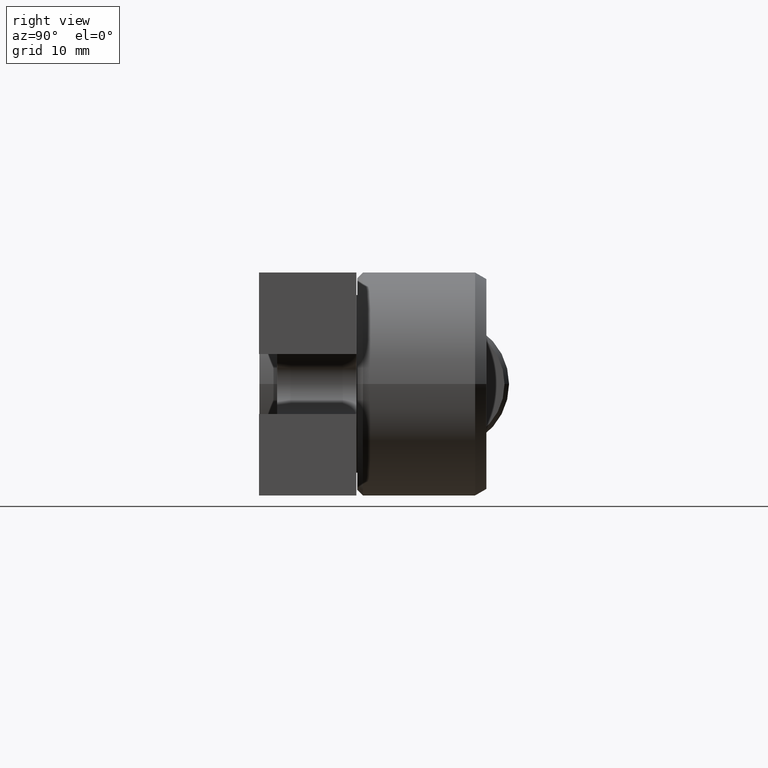
[diagram: clean part render]
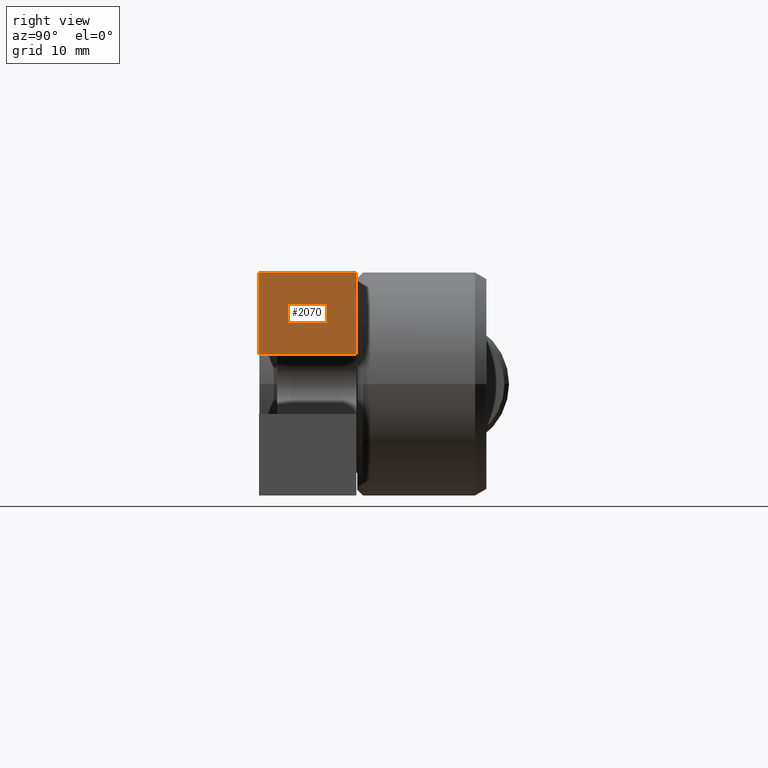
[diagram: same view with one face highlighted and labeled with its STEP entity id]
A machine part, right view. The second image highlights one B-rep face of the part: STEP entity #2070.
In plain terms, the highlighted planar face has unit normal (-1, 0, 0).
Its self-contained STEP definition (entity closure, byte-faithful):
#68 = CARTESIAN_POINT ( 'NONE',  ( 54.12306664389138400, 5.698134787764893800, 12.49679999999999900 ) ) ;
#111 = VECTOR ( 'NONE', #287, 1000.000000000000000 ) ;
#287 = DIRECTION ( 'NONE',  ( 0.0000000000000000000, 0.0000000000000000000, -1.000000000000000000 ) ) ;
#528 = ORIENTED_EDGE ( 'NONE', *, *, #1665, .F. ) ;
#629 = LINE ( 'NONE', #5098, #4237 ) ;
#811 = EDGE_LOOP ( 'NONE', ( #3054, #528, #5179, #2494 ) ) ;
#1261 = DIRECTION ( 'NONE',  ( -1.000000000000000000, 0.0000000000000000000, 0.0000000000000000000 ) ) ;
#1390 = CARTESIAN_POINT ( 'NONE',  ( 54.12306664389138400, -5.223865212235105900, 8.999471541716452500E-015 ) ) ;
#1665 = EDGE_CURVE ( 'NONE', #4289, #3791, #629, .T. ) ;
#2070 = ADVANCED_FACE ( 'NONE', ( #3810 ), #6865, .F. ) ;
#2152 = VECTOR ( 'NONE', #2342, 1000.000000000000000 ) ;
#2342 = DIRECTION ( 'NONE',  ( -0.0000000000000000000, -1.000000000000000000, -0.0000000000000000000 ) ) ;
#2494 = ORIENTED_EDGE ( 'NONE', *, *, #3074, .T. ) ;
#2892 = CARTESIAN_POINT ( 'NONE',  ( 54.12306664389138400, 5.698134787764893800, 12.49679999999999900 ) ) ;
#3054 = ORIENTED_EDGE ( 'NONE', *, *, #5322, .T. ) ;
#3074 = EDGE_CURVE ( 'NONE', #6657, #4858, #4087, .T. ) ;
#3257 = DIRECTION ( 'NONE',  ( 0.0000000000000000000, 0.0000000000000000000, -1.000000000000000000 ) ) ;
#3463 = DIRECTION ( 'NONE',  ( 0.0000000000000000000, 0.0000000000000000000, 1.000000000000000000 ) ) ;
#3529 = CARTESIAN_POINT ( 'NONE',  ( 54.12306664389138400, 5.698134787764893800, 8.999471541716452500E-015 ) ) ;
#3689 = CARTESIAN_POINT ( 'NONE',  ( 54.12306664389138400, 5.698134787764893800, 8.999471541716452500E-015 ) ) ;
#3791 = VERTEX_POINT ( 'NONE', #5163 ) ;
#3810 = FACE_OUTER_BOUND ( 'NONE', #811, .T. ) ;
#4087 = LINE ( 'NONE', #2892, #2152 ) ;
#4165 = LINE ( 'NONE', #3689, #5082 ) ;
#4237 = VECTOR ( 'NONE', #5171, 1000.000000000000000 ) ;
#4289 = VERTEX_POINT ( 'NONE', #6554 ) ;
#4743 = EDGE_CURVE ( 'NONE', #6657, #4289, #4165, .T. ) ;
#4858 = VERTEX_POINT ( 'NONE', #7172 ) ;
#5082 = VECTOR ( 'NONE', #3257, 1000.000000000000000 ) ;
#5098 = CARTESIAN_POINT ( 'NONE',  ( 54.12306664389138400, 5.698134787764893800, 3.365500000000003900 ) ) ;
#5163 = CARTESIAN_POINT ( 'NONE',  ( 54.12306664389138400, -5.223865212235105900, 3.365500000000003900 ) ) ;
#5171 = DIRECTION ( 'NONE',  ( -0.0000000000000000000, -1.000000000000000000, -0.0000000000000000000 ) ) ;
#5179 = ORIENTED_EDGE ( 'NONE', *, *, #4743, .F. ) ;
#5322 = EDGE_CURVE ( 'NONE', #4858, #3791, #6853, .T. ) ;
#5593 = AXIS2_PLACEMENT_3D ( 'NONE', #3529, #1261, #3463 ) ;
#6554 = CARTESIAN_POINT ( 'NONE',  ( 54.12306664389138400, 5.698134787764893800, 3.365500000000003900 ) ) ;
#6657 = VERTEX_POINT ( 'NONE', #68 ) ;
#6853 = LINE ( 'NONE', #1390, #111 ) ;
#6865 = PLANE ( 'NONE',  #5593 ) ;
#7172 = CARTESIAN_POINT ( 'NONE',  ( 54.12306664389138400, -5.223865212235105900, 12.49679999999999900 ) ) ;